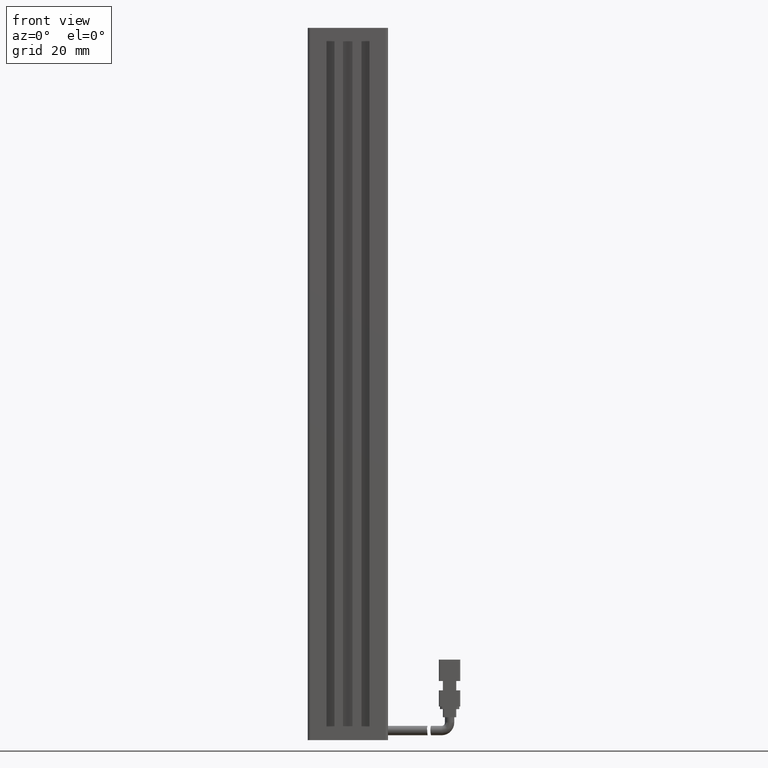
[diagram: clean part render]
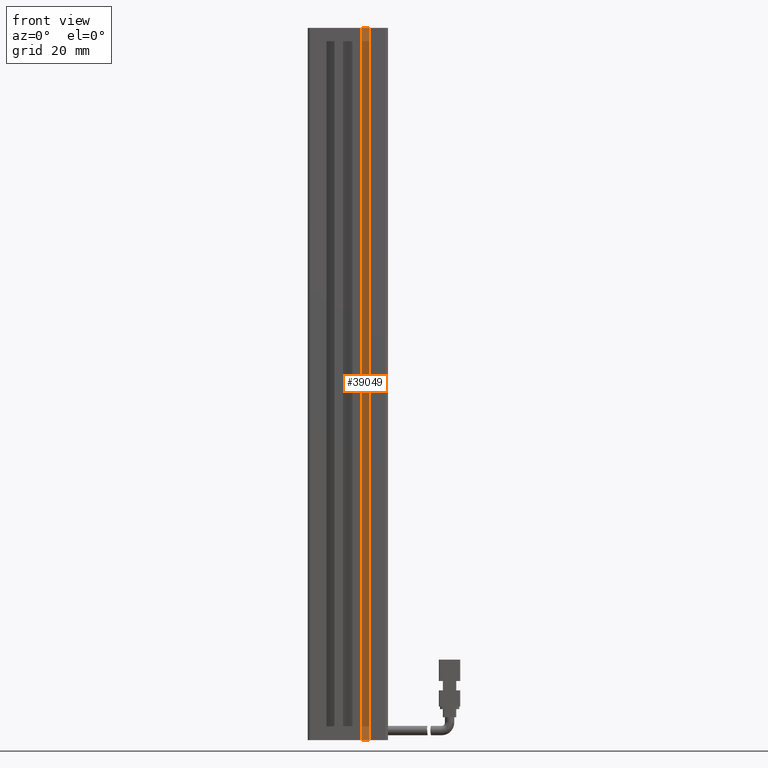
[diagram: same view with one face highlighted and labeled with its STEP entity id]
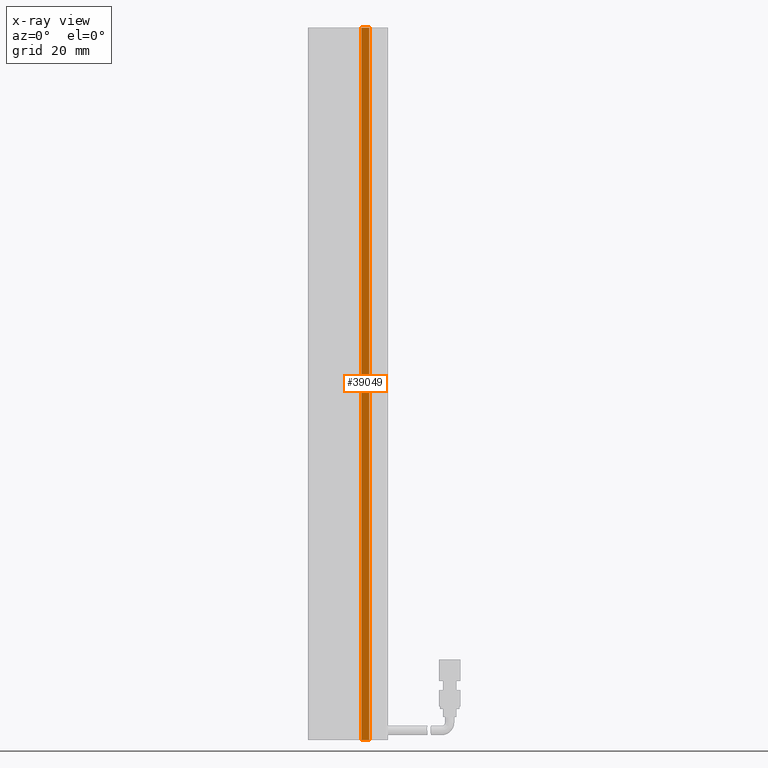
[diagram: x-ray of the same camera — body ghosted, the highlighted face saturated]
A machine part, front view. The second image highlights one B-rep face of the part: STEP entity #39049.
The next image is the same camera in x-ray: the body ghosted, the highlighted face saturated — about 0% of this face is hidden behind the body in this view.
In plain terms, the highlighted planar face has unit normal (0, -1, 0).
Its self-contained STEP definition (entity closure, byte-faithful):
#4859 = DIRECTION ( 'NONE',  ( 1.000000000000000000, 0.0000000000000000000, 0.0000000000000000000 ) ) ;
#7139 = CARTESIAN_POINT ( 'NONE',  ( 45.92537974683541800, 16.19594479660386800, 18.00000000000000400 ) ) ;
#9588 = VECTOR ( 'NONE', #4859, 1000.000000000000000 ) ;
#10639 = VERTEX_POINT ( 'NONE', #32795 ) ;
#13468 = ORIENTED_EDGE ( 'NONE', *, *, #15196, .F. ) ;
#15196 = EDGE_CURVE ( 'NONE', #39379, #49116, #42276, .T. ) ;
#16170 = VECTOR ( 'NONE', #41427, 1000.000000000000000 ) ;
#16528 = ORIENTED_EDGE ( 'NONE', *, *, #43009, .F. ) ;
#19288 = VERTEX_POINT ( 'NONE', #53932 ) ;
#19658 = DIRECTION ( 'NONE',  ( -0.0000000000000000000, -0.0000000000000000000, -1.000000000000000000 ) ) ;
#20260 = ORIENTED_EDGE ( 'NONE', *, *, #33264, .T. ) ;
#20910 = ORIENTED_EDGE ( 'NONE', *, *, #28491, .T. ) ;
#21424 = LINE ( 'NONE', #40800, #54094 ) ;
#24894 = CARTESIAN_POINT ( 'NONE',  ( 40.92537974683542500, 16.19594479660386800, 18.00000000000000400 ) ) ;
#27276 = CARTESIAN_POINT ( 'NONE',  ( 45.92537974683541800, 16.19594479660386800, 18.00000000000000400 ) ) ;
#28491 = EDGE_CURVE ( 'NONE', #39379, #10639, #50277, .T. ) ;
#29210 = DIRECTION ( 'NONE',  ( 0.0000000000000000000, -0.0000000000000000000, -1.000000000000000000 ) ) ;
#30539 = CARTESIAN_POINT ( 'NONE',  ( 40.92537974683542500, 16.19594479660386800, -248.0000000000000000 ) ) ;
#32450 = LINE ( 'NONE', #30539, #9588 ) ;
#32795 = CARTESIAN_POINT ( 'NONE',  ( 45.92537974683541800, 16.19594479660386800, -248.0000000000000000 ) ) ;
#33264 = EDGE_CURVE ( 'NONE', #10639, #19288, #32450, .T. ) ;
#34268 = CARTESIAN_POINT ( 'NONE',  ( 48.92537974683541800, 16.19594479660386800, 18.00000000000000400 ) ) ;
#34737 = FACE_OUTER_BOUND ( 'NONE', #54066, .T. ) ;
#37814 = AXIS2_PLACEMENT_3D ( 'NONE', #24894, #54733, #29210 ) ;
#39049 = ADVANCED_FACE ( 'NONE', ( #34737 ), #46030, .T. ) ;
#39379 = VERTEX_POINT ( 'NONE', #27276 ) ;
#40800 = CARTESIAN_POINT ( 'NONE',  ( 48.92537974683541800, 16.19594479660386800, 18.00000000000000400 ) ) ;
#41427 = DIRECTION ( 'NONE',  ( 0.0000000000000000000, -0.0000000000000000000, -1.000000000000000000 ) ) ;
#42276 = LINE ( 'NONE', #47117, #53534 ) ;
#43009 = EDGE_CURVE ( 'NONE', #49116, #19288, #21424, .T. ) ;
#46030 = PLANE ( 'NONE',  #37814 ) ;
#46976 = DIRECTION ( 'NONE',  ( 1.000000000000000000, 0.0000000000000000000, 0.0000000000000000000 ) ) ;
#47117 = CARTESIAN_POINT ( 'NONE',  ( 40.92537974683542500, 16.19594479660386800, 18.00000000000000400 ) ) ;
#49116 = VERTEX_POINT ( 'NONE', #34268 ) ;
#50277 = LINE ( 'NONE', #7139, #16170 ) ;
#53534 = VECTOR ( 'NONE', #46976, 1000.000000000000000 ) ;
#53932 = CARTESIAN_POINT ( 'NONE',  ( 48.92537974683541800, 16.19594479660386800, -248.0000000000000000 ) ) ;
#54066 = EDGE_LOOP ( 'NONE', ( #13468, #20910, #20260, #16528 ) ) ;
#54094 = VECTOR ( 'NONE', #19658, 1000.000000000000000 ) ;
#54733 = DIRECTION ( 'NONE',  ( 0.0000000000000000000, -1.000000000000000000, 0.0000000000000000000 ) ) ;